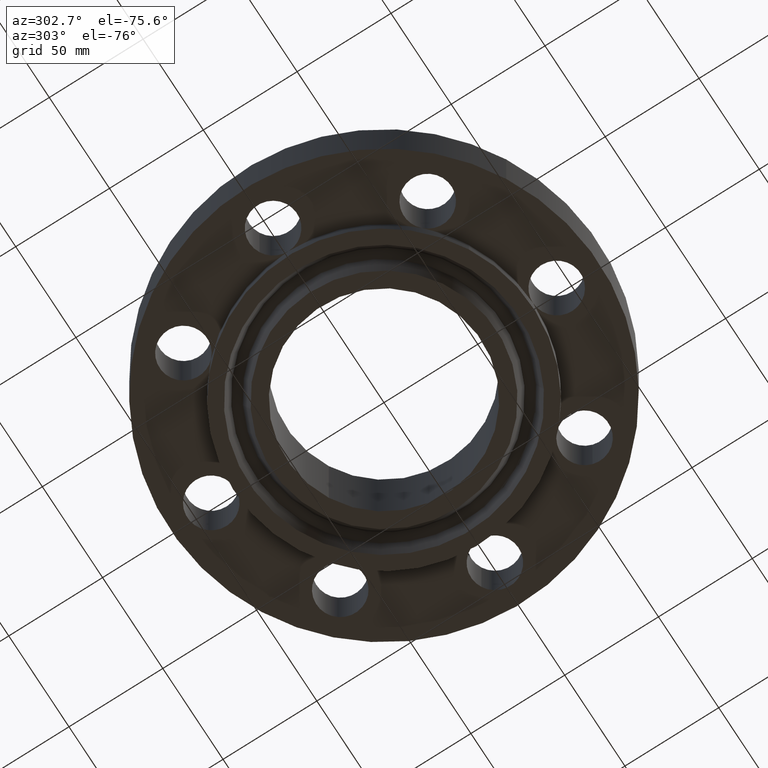
[diagram: clean part render]
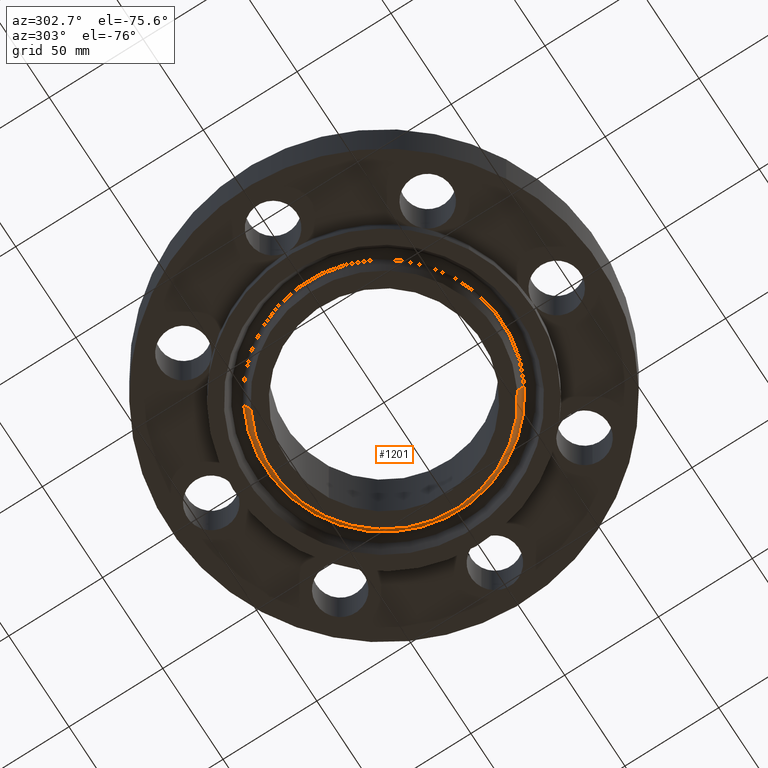
[diagram: same view with one face highlighted and labeled with its STEP entity id]
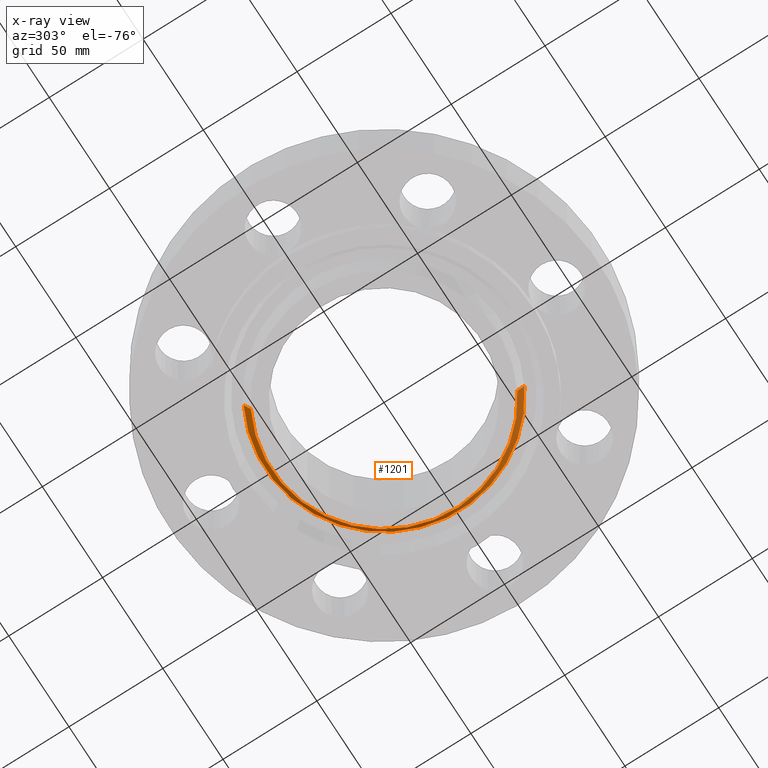
[diagram: x-ray of the same camera — body ghosted, the highlighted face saturated]
A machine part, auxiliary view. The second image highlights one B-rep face of the part: STEP entity #1201.
The next image is the same camera in x-ray: the body ghosted, the highlighted face saturated — about 0% of this face is hidden behind the body in this view.
In plain terms, the highlighted conical surface has half-angle 23 deg.
Its self-contained STEP definition (entity closure, byte-faithful):
#1007=AXIS2_PLACEMENT_3D('Circle Axis2P3D',#1005,#1006,$) ;
#1151=AXIS2_PLACEMENT_3D('Circle Axis2P3D',#1149,#1150,$) ;
#1183=AXIS2_PLACEMENT_3D('Cone Axis2P3D',#1180,#1181,#1182) ;
#1005=CARTESIAN_POINT('Axis2P3D Location',(1.1189649382E-015,-5.59482469102E-016,-0.312500000001)) ;
#1009=CARTESIAN_POINT('Vertex',(-1.13114463015,2.07054635697,-0.312500000001)) ;
#1011=CARTESIAN_POINT('Vertex',(1.13114463015,-2.07054635697,-0.312500000001)) ;
#1146=CARTESIAN_POINT('Vertex',(1.19086500454,-2.17986376902,-0.0190396522348)) ;
#1149=CARTESIAN_POINT('Axis2P3D Location',(0.,0.,-0.0190396522348)) ;
#1153=CARTESIAN_POINT('Vertex',(-1.19086500454,2.17986376902,-0.0190396522348)) ;
#1180=CARTESIAN_POINT('Axis2P3D Location',(0.,0.,-0.372500000001)) ;
#1185=CARTESIAN_POINT('Line Origine',(-1.16100481734,2.12520506299,-0.165769826118)) ;
#1190=CARTESIAN_POINT('Line Origine',(1.16100481734,-2.12520506299,-0.165769826118)) ;
#1006=DIRECTION('Axis2P3D Direction',(0.,0.,-0.0393700787402)) ;
#1150=DIRECTION('Axis2P3D Direction',(0.,0.,0.0393700787402)) ;
#1181=DIRECTION('Axis2P3D Direction',(0.,0.,0.0393700787402)) ;
#1182=DIRECTION('Axis2P3D XDirection',(-0.0188750212049,0.0345504945626,0.)) ;
#1186=DIRECTION('Vector Direction',(-0.00737505833565,0.0134999537303,0.0362403485611)) ;
#1191=DIRECTION('Vector Direction',(0.00737505833565,-0.0134999537303,0.0362403485611)) ;
#1187=VECTOR('Line Direction',#1186,0.0393700787402) ;
#1192=VECTOR('Line Direction',#1191,0.0393700787402) ;
#1196=ORIENTED_EDGE('',*,*,#1189,.F.) ;
#1197=ORIENTED_EDGE('',*,*,#1155,.F.) ;
#1198=ORIENTED_EDGE('',*,*,#1194,.T.) ;
#1199=ORIENTED_EDGE('',*,*,#1013,.F.) ;
#1201=ADVANCED_FACE('PartBody',(#1200),#1184,.T.) ;
#1008=CIRCLE('generated circle',#1007,2.35937500001) ;
#1152=CIRCLE('generated circle',#1151,2.48394152719) ;
#1184=CONICAL_SURFACE('Cone',#1183,2.33390651104,0.401425727959) ;
#1013=EDGE_CURVE('',#1010,#1012,#1008,.T.) ;
#1155=EDGE_CURVE('',#1147,#1154,#1152,.T.) ;
#1189=EDGE_CURVE('',#1154,#1010,#1188,.F.) ;
#1194=EDGE_CURVE('',#1147,#1012,#1193,.F.) ;
#1195=EDGE_LOOP('',(#1196,#1197,#1198,#1199)) ;
#1200=FACE_OUTER_BOUND('',#1195,.T.) ;
#1188=LINE('Line',#1185,#1187) ;
#1193=LINE('Line',#1190,#1192) ;
#1010=VERTEX_POINT('',#1009) ;
#1012=VERTEX_POINT('',#1011) ;
#1147=VERTEX_POINT('',#1146) ;
#1154=VERTEX_POINT('',#1153) ;